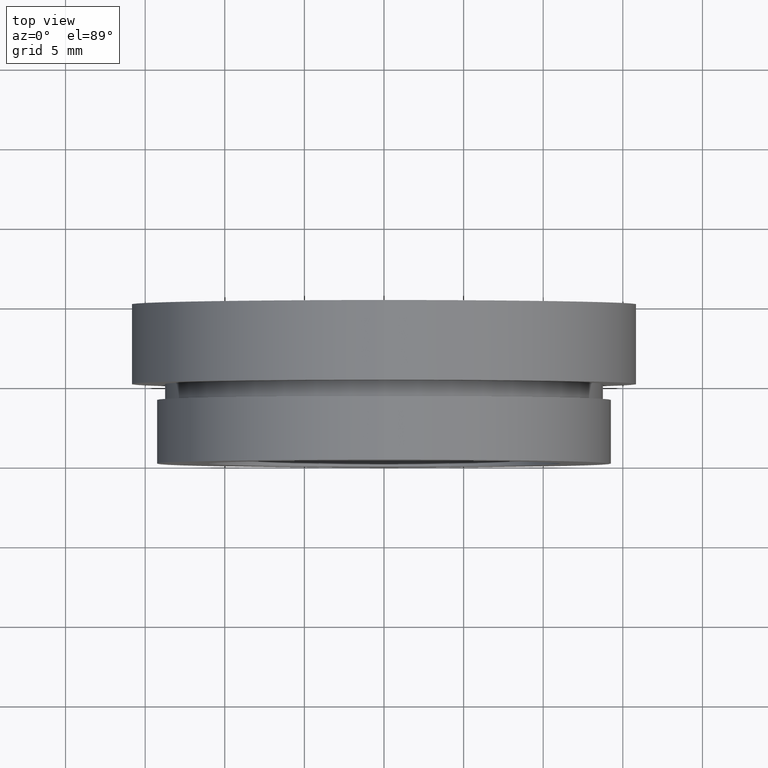
[diagram: clean part render]
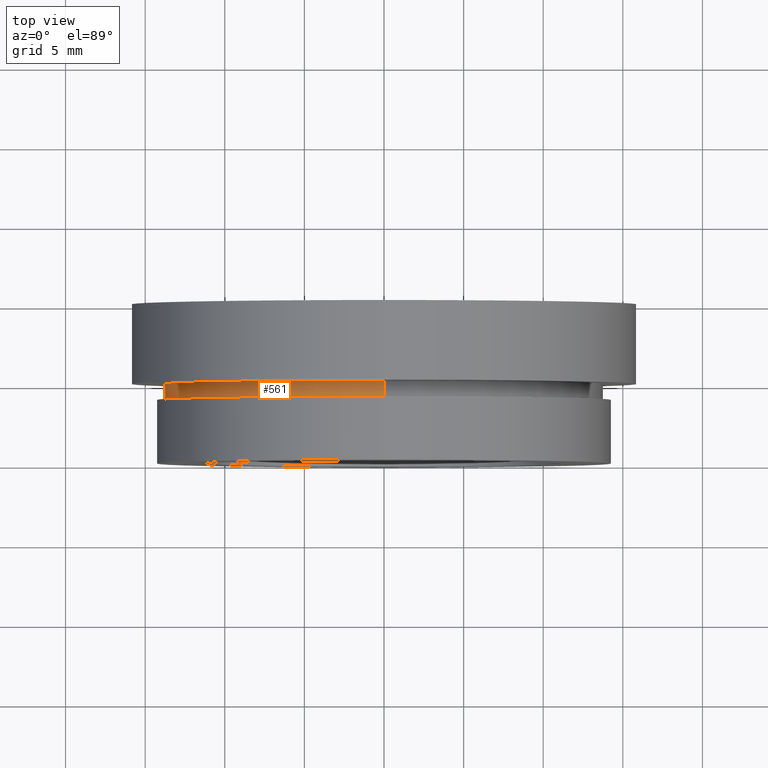
[diagram: same view with one face highlighted and labeled with its STEP entity id]
A machine part, top view. The second image highlights one B-rep face of the part: STEP entity #561.
In plain terms, the highlighted cylindrical surface (partial cylindrical patch) has radius 13.75 mm, axis along (-0, 1, -0).
Its self-contained STEP definition (entity closure, byte-faithful):
#10 = CARTESIAN_POINT ( 'NONE',  ( 0.0000000000000000000, 5.000000000000000900, 13.75000000000000000 ) ) ;
#27 = VERTEX_POINT ( 'NONE', #10 ) ;
#80 = DIRECTION ( 'NONE',  ( -0.0000000000000000000, 1.000000000000000000, -0.0000000000000000000 ) ) ;
#82 = VECTOR ( 'NONE', #477, 1000.000000000000000 ) ;
#87 = DIRECTION ( 'NONE',  ( 0.0000000000000000000, 0.0000000000000000000, 1.000000000000000000 ) ) ;
#132 = CARTESIAN_POINT ( 'NONE',  ( 0.0000000000000000000, 13.74468085106383300, 13.75000000000000000 ) ) ;
#135 = ORIENTED_EDGE ( 'NONE', *, *, #468, .F. ) ;
#136 = EDGE_CURVE ( 'NONE', #526, #27, #461, .T. ) ;
#138 = CARTESIAN_POINT ( 'NONE',  ( 0.0000000000000000000, 13.74468085106383300, 0.0000000000000000000 ) ) ;
#141 = DIRECTION ( 'NONE',  ( -0.0000000000000000000, 1.000000000000000000, -0.0000000000000000000 ) ) ;
#149 = CARTESIAN_POINT ( 'NONE',  ( 1.683889348827610700E-015, 4.000000000000000000, -13.75000000000000000 ) ) ;
#173 = CYLINDRICAL_SURFACE ( 'NONE', #517, 13.75000000000000000 ) ;
#199 = EDGE_CURVE ( 'NONE', #362, #586, #446, .T. ) ;
#203 = FACE_OUTER_BOUND ( 'NONE', #410, .T. ) ;
#255 = DIRECTION ( 'NONE',  ( 0.0000000000000000000, 0.0000000000000000000, 1.000000000000000000 ) ) ;
#267 = ORIENTED_EDGE ( 'NONE', *, *, #505, .T. ) ;
#301 = CARTESIAN_POINT ( 'NONE',  ( 0.0000000000000000000, 4.000000000000000000, 0.0000000000000000000 ) ) ;
#303 = ORIENTED_EDGE ( 'NONE', *, *, #136, .F. ) ;
#305 = DIRECTION ( 'NONE',  ( -0.0000000000000000000, 1.000000000000000000, -0.0000000000000000000 ) ) ;
#308 = AXIS2_PLACEMENT_3D ( 'NONE', #301, #595, #255 ) ;
#344 = LINE ( 'NONE', #474, #456 ) ;
#360 = CARTESIAN_POINT ( 'NONE',  ( 0.0000000000000000000, 4.000000000000000000, 13.75000000000000000 ) ) ;
#362 = VERTEX_POINT ( 'NONE', #149 ) ;
#385 = ORIENTED_EDGE ( 'NONE', *, *, #199, .T. ) ;
#398 = DIRECTION ( 'NONE',  ( 0.0000000000000000000, 0.0000000000000000000, 1.000000000000000000 ) ) ;
#410 = EDGE_LOOP ( 'NONE', ( #135, #385, #267, #303 ) ) ;
#446 = CIRCLE ( 'NONE', #308, 13.75000000000000000 ) ;
#456 = VECTOR ( 'NONE', #141, 1000.000000000000000 ) ;
#461 = CIRCLE ( 'NONE', #579, 13.75000000000000000 ) ;
#468 = EDGE_CURVE ( 'NONE', #362, #526, #344, .T. ) ;
#471 = CARTESIAN_POINT ( 'NONE',  ( 1.683889348827610700E-015, 5.000000000000000900, -13.75000000000000000 ) ) ;
#474 = CARTESIAN_POINT ( 'NONE',  ( 1.683889348827610700E-015, 13.74468085106383300, -13.75000000000000000 ) ) ;
#477 = DIRECTION ( 'NONE',  ( -0.0000000000000000000, 1.000000000000000000, -0.0000000000000000000 ) ) ;
#505 = EDGE_CURVE ( 'NONE', #586, #27, #584, .T. ) ;
#517 = AXIS2_PLACEMENT_3D ( 'NONE', #138, #80, #87 ) ;
#526 = VERTEX_POINT ( 'NONE', #471 ) ;
#555 = CARTESIAN_POINT ( 'NONE',  ( 0.0000000000000000000, 5.000000000000000900, 0.0000000000000000000 ) ) ;
#561 = ADVANCED_FACE ( 'NONE', ( #203 ), #173, .T. ) ;
#579 = AXIS2_PLACEMENT_3D ( 'NONE', #555, #305, #398 ) ;
#584 = LINE ( 'NONE', #132, #82 ) ;
#586 = VERTEX_POINT ( 'NONE', #360 ) ;
#595 = DIRECTION ( 'NONE',  ( -0.0000000000000000000, 1.000000000000000000, -0.0000000000000000000 ) ) ;